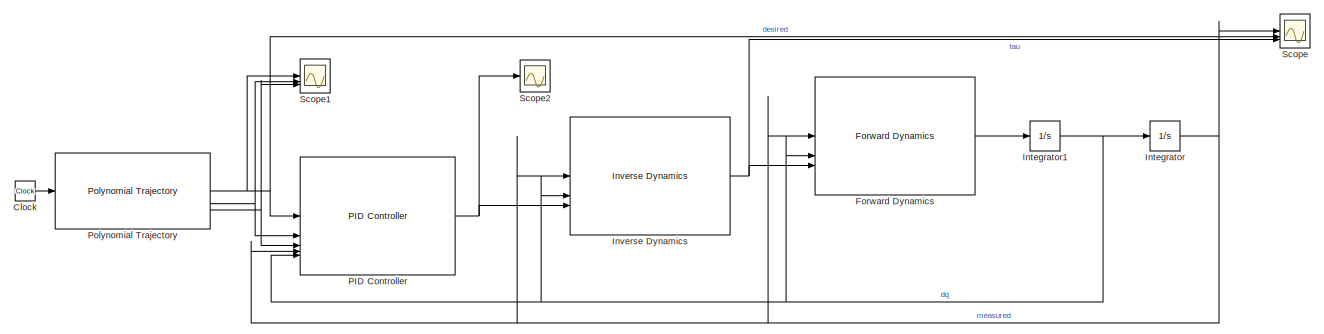
[diagram: root canvas - part 1/2, full width, top band]
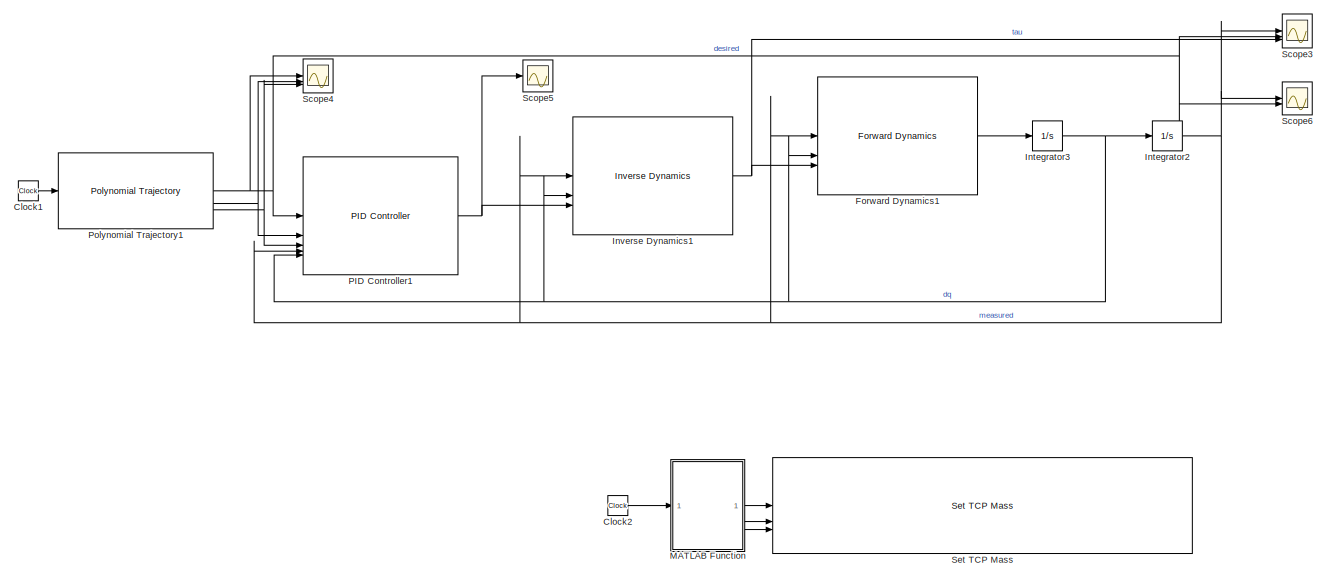
[diagram: root canvas - part 2/2, full width, bottom band]
MODEL slx_c5e500d72f78
KIND model
CONFIG AbsTol = auto
CONFIG EnableMultiTasking = off
CONFIG FixedStep = 1e-3
CONFIG MaxStep = auto
CONFIG MinStep = auto
CONFIG RelTol = 1e-3
CONFIG SampleTimeConstraint = Unconstrained
CONFIG SolverName = ode1
CONFIG StartTime = 0.0
CONFIG StopTime = 50
WORKSPACE source: mxarray member
WORKSPACE dt = 0.001
BLOCK [Reference]  Inverse Dynamics  REF=sdu_controllers/ Inverse Dynamics
  Commented = on
  SourceBlock = sdu_controllers/ Inverse Dynamics
  SourceType = inverse_dynamics
BLOCK [Clock] Clock
  Commented = on
BLOCK [Clock] Clock1
BLOCK [Clock] Clock2
BLOCK [Reference] Forward Dynamics  REF=sdu_controllers/Forward Dynamics
  Commented = on
  SourceBlock = sdu_controllers/Forward Dynamics
  SourceType = forward_dynamics
BLOCK [Reference] Forward Dynamics1  REF=sdu_controllers/Dynamics/Forward Dynamics
  SourceBlock = sdu_controllers/Dynamics/Forward Dynamics
  SourceProductName = SDU Controllers
  SourceType = forward_dynamics
BLOCK [Integrator] Integrator
  Commented = on
  InitialCondition = [0;-pi/2;-pi/2;-pi/2;pi/2;0]
BLOCK [Integrator] Integrator1
  Commented = on
  InitialCondition = zeros(6,1)
BLOCK [Integrator] Integrator2
  InitialCondition = [0;-pi/2;-pi/2;-pi/2;pi/2;0; pi/2]
BLOCK [Integrator] Integrator3
  InitialCondition = zeros(7,1)
BLOCK [Reference] Inverse Dynamics1  REF=sdu_controllers/Dynamics/Inverse Dynamics
  SourceBlock = sdu_controllers/Dynamics/Inverse Dynamics
  SourceProductName = SDU Controllers
  SourceType = inverse_dynamics
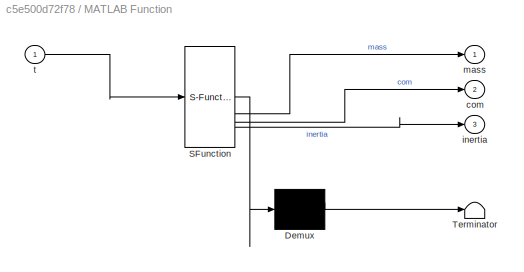
BLOCK [SubSystem] MATLAB Function
  ErrorFcn = Stateflow.Translate.translate
  PermitHierarchicalResolution = ExplicitOnly
  SFBlockType = MATLAB Function
  TreatAsAtomicUnit = on
BLOCK [Demux] MATLAB Function/ Demux 
  Outputs = 1
BLOCK [S-Function] MATLAB Function/ SFunction 
  EnableBusSupport = on
  FunctionName = sf_sfun
  PortCounts = [1 4]
  SFcnIsStateOwnerBlock = off
  SFunctionDeploymentMode = off
  Tag = Stateflow S-Function 2
BLOCK [Terminator] MATLAB Function/ Terminator 
BLOCK [Outport] MATLAB Function/com
  Port = 2
BLOCK [Outport] MATLAB Function/inertia
  Port = 3
BLOCK [Outport] MATLAB Function/mass
BLOCK [Inport] MATLAB Function/t
BLOCK [Reference] PID Controller  REF=sdu_controllers/PID Controller
  Commented = on
  SourceBlock = sdu_controllers/PID Controller
  SourceType = pid_controller
BLOCK [Reference] PID Controller1  REF=sdu_controllers/Controllers/PID Controller
  SourceBlock = sdu_controllers/Controllers/PID Controller
  SourceProductName = SDU Controllers
  SourceType = pid_controller
BLOCK [Reference] Polynomial Trajectory  REF=robotcorelib/Polynomial Trajectory
  Commented = on
  LibrarySourceBlock = robotutilslib/Polynomial Trajectory
  SourceBlock = robotcorelib/Polynomial Trajectory
  SourceType = robotics.slcore.internal.block.PolyTrajSys
BLOCK [Reference] Polynomial Trajectory1  REF=robotcorelib/Polynomial Trajectory
  LibrarySourceBlock = robotutilslib/Polynomial Trajectory
  SourceBlock = robotcorelib/Polynomial Trajectory
  SourceType = robotics.slcore.internal.block.PolyTrajSys
BLOCK [Scope] Scope
  Commented = on
  Floating = off
  NumInputPorts = 3
  ScopeSpecificationString = C++SS(StrPVP('LayoutDimensionsString','[3 1]'),StrPVP('ShowLegend','on'),StrPVP('ActiveDisplayYMinimum','-2.55254'),StrPVP('ActiveDisplayYMaximum','2.02895'),StrPVP('LimitDataPoints','on'),StrPVP('DataFormat','Array'),StrPVP('Decimation','1'),StrPVP('BlockParamSampleInput','off'))
BLOCK [Scope] Scope1
  Commented = on
  Floating = off
  NumInputPorts = 3
  ScopeSpecificationString = C++SS(StrPVP('LayoutDimensionsString','[3 1]'),StrPVP('ActiveDisplayYMinimum','-2.55254'),StrPVP('ActiveDisplayYMaximum','2.02895'),StrPVP('DataLoggingVariableName','ScopeData1'),StrPVP('LimitDataPoints','on'),StrPVP('DataFormat','Array'),StrPVP('Decimation','1'),StrPVP('BlockParamSampleInput','off'))
BLOCK [Scope] Scope2
  Commented = on
  Floating = off
  NumInputPorts = 1
  ScopeSpecificationString = C++SS(StrPVP('ActiveDisplayYMinimum','-0.03688'),StrPVP('ActiveDisplayYMaximum','0.04172'),StrPVP('DataLoggingVariableName','ScopeData2'),StrPVP('LimitDataPoints','on'),StrPVP('DataFormat','Array'),StrPVP('Decimation','1'),StrPVP('BlockParamSampleInput','off'))
BLOCK [Scope] Scope3
  Floating = off
  NumInputPorts = 3
  ScopeSpecificationString = Simulink.scopes.TimeScopeBlockCfg('CurrentConfiguration', extmgr.ConfigurationSet(extmgr.Configuration('Core','General UI',true),extmgr.Configuration('Core','Source UI',true),extmgr.Configuration('Sources','WiredSimulink',true,'DataLoggingVariableName','ScopeData3','DataLoggingDecimateData',true,'DataLoggingDecimation','1','DataLoggingSaveFormat','Array'),extmgr.Configuration('Visuals','Time Domai...<+3308ch>
BLOCK [Scope] Scope4
  Floating = off
  NumInputPorts = 3
  ScopeSpecificationString = C++SS(StrPVP('LayoutDimensionsString','[3 1]'),StrPVP('ActiveDisplayYMinimum','-2.5304537863151473'),StrPVP('ActiveDisplayYMaximum','2.0264907838071236'),StrPVP('DataLoggingVariableName','ScopeData4'),StrPVP('LimitDataPoints','on'),StrPVP('DataFormat','Array'),StrPVP('Decimation','1'),StrPVP('BlockParamSampleInput','off'))
BLOCK [Scope] Scope5
  Floating = off
  NumInputPorts = 1
  ScopeSpecificationString = C++SS(StrPVP('ActiveDisplayYMinimum','-0.03688'),StrPVP('ActiveDisplayYMaximum','0.04172'),StrPVP('DataLoggingVariableName','ScopeData5'),StrPVP('LimitDataPoints','on'),StrPVP('DataFormat','Array'),StrPVP('Decimation','1'),StrPVP('BlockParamSampleInput','off'))
BLOCK [Scope] Scope6
  Floating = off
  NumInputPorts = 2
  ScopeSpecificationString = C++SS(StrPVP('ActiveDisplayYMinimum','1.4708955343836616'),StrPVP('ActiveDisplayYMaximum','1.7361642130691672'),StrPVP('DataLoggingVariableName','ScopeData6'),StrPVP('LimitDataPoints','on'),StrPVP('DataFormat','Array'),StrPVP('Decimation','1'),StrPVP('BlockParamSampleInput','off'))
BLOCK [Reference] Set TCP Mass  REF=sdu_controllers/Dynamics/Set TCP Mass
  SourceBlock = sdu_controllers/Dynamics/Set TCP Mass
  SourceProductName = SDU Controllers
  SourceType = dynamics.set_tcp_mass
NET  Inverse Dynamics:1 -> Forward Dynamics:3, Scope:3
LINE Clock1:1 -> Polynomial Trajectory1:1
LINE Clock2:1 -> MATLAB Function:1
LINE Clock:1 -> Polynomial Trajectory:1
LINE Forward Dynamics1:1 -> Integrator3:1
LINE Forward Dynamics:1 -> Integrator1:1
NET Integrator1:1 ->  Inverse Dynamics:2, Forward Dynamics:2, Integrator:1, PID Controller:5
NET Integrator2:1 -> Forward Dynamics1:1, Inverse Dynamics1:1, PID Controller1:4, Scope3:1, Scope6:1
NET Integrator3:1 -> Forward Dynamics1:2, Integrator2:1, Inverse Dynamics1:2, PID Controller1:5
NET Integrator:1 ->  Inverse Dynamics:1, Forward Dynamics:1, PID Controller:4, Scope:1
NET Inverse Dynamics1:1 -> Forward Dynamics1:3, Scope3:3
LINE MATLAB Function:1 -> Set TCP Mass:1
LINE MATLAB Function:2 -> Set TCP Mass:2
LINE MATLAB Function:3 -> Set TCP Mass:3
NET PID Controller1:1 -> Inverse Dynamics1:3, Scope5:1
NET PID Controller:1 ->  Inverse Dynamics:3, Scope2:1
NET Polynomial Trajectory1:1 -> PID Controller1:1, Scope3:2, Scope4:1, Scope6:2
NET Polynomial Trajectory1:2 -> PID Controller1:2, Scope4:2
NET Polynomial Trajectory1:3 -> PID Controller1:3, Scope4:3
NET Polynomial Trajectory:1 -> PID Controller:1, Scope1:1, Scope:2
NET Polynomial Trajectory:2 -> PID Controller:2, Scope1:2
NET Polynomial Trajectory:3 -> PID Controller:3, Scope1:3
note: NET lines group one-source signal fan-out (src -> all destinations, sorted); 1:1 wires keep LINE
CHART MATLAB Function states=1 transitions=1
  STATE_LABEL 'eML_blk_kernel()'
  STATE_LABEL 'SCRIPT:\nfunction [mass, com, inertia] = fcn(t)\n\nif t < 25\n    mass = 0;\n    com = [0 0 0];\n    inertia = zeros(3, 3);\nelse\n    mass = 90e3;\n    com = [0 0 5];\n    inertia = 1e4 * eye(3);\nend\n'
CHART  states=0 transitions=0
